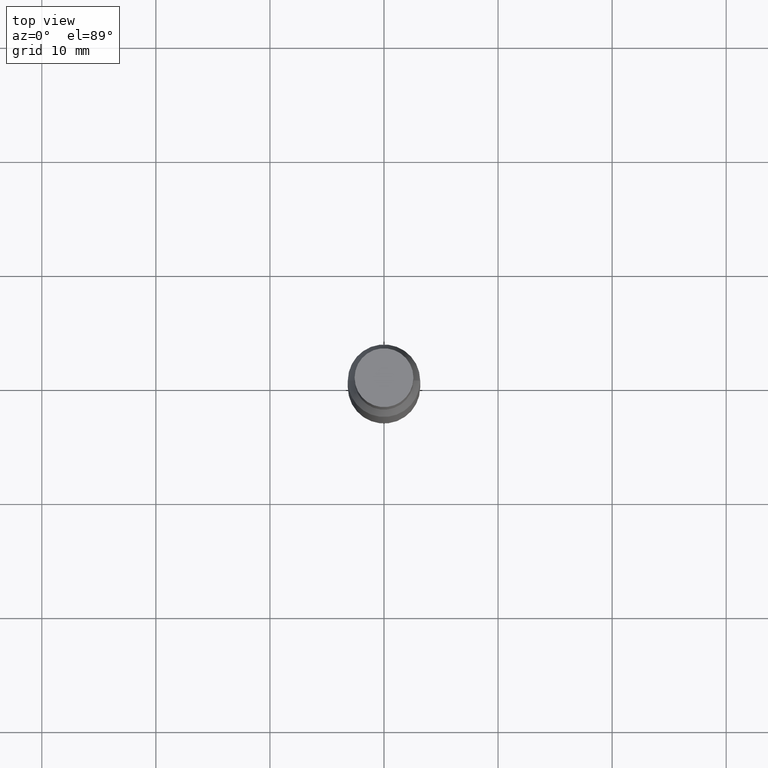
[diagram: clean part render]
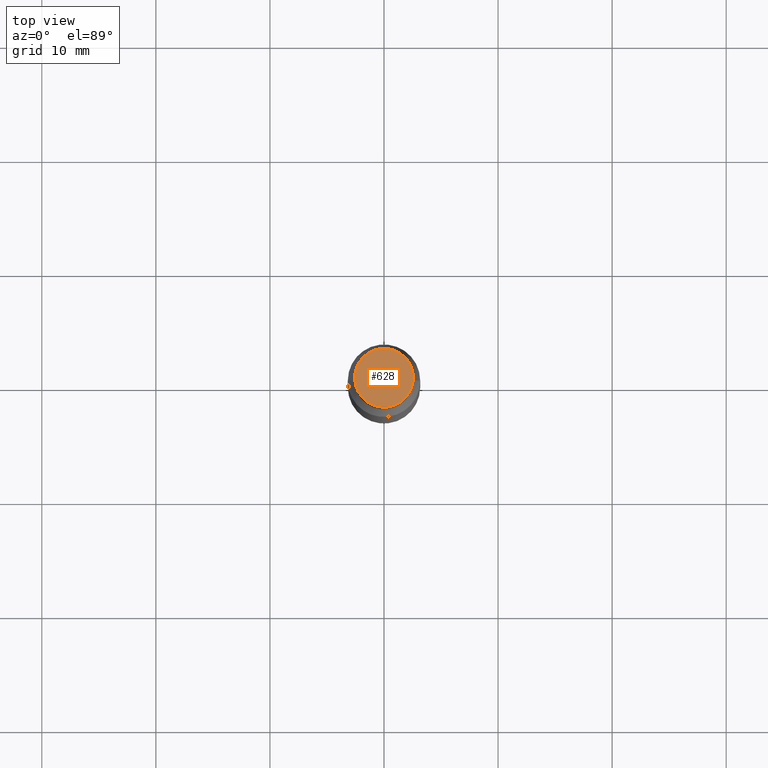
[diagram: same view with one face highlighted and labeled with its STEP entity id]
A machine part, top view. The second image highlights one B-rep face of the part: STEP entity #628.
In plain terms, the highlighted planar face has unit normal (-0, -0, -1).
Its self-contained STEP definition (entity closure, byte-faithful):
#36 = CARTESIAN_POINT ( 'NONE',  ( 6.155164165207819189E-29, 5.982381516878351542E-17, 5.463695987328526437E-16 ) ) ;
#51 = CARTESIAN_POINT ( 'NONE',  ( 6.113672015462842613E-29, 4.046951474745467748E-19, 5.463695987328526437E-16 ) ) ;
#78 = CIRCLE ( 'NONE', #437, 0.1015500000000000708 ) ;
#191 = DIRECTION ( 'NONE',  ( 2.445468806185136597E-29, 3.491805094961124077E-15, 1.000000000000000000 ) ) ;
#193 = EDGE_CURVE ( 'NONE', #581, #897, #614, .T. ) ;
#256 = DIRECTION ( 'NONE',  ( 1.000000000000000000, -6.982962677686266711E-15, 0.000000000000000000 ) ) ;
#329 = PLANE ( 'NONE',  #340 ) ;
#340 = AXIS2_PLACEMENT_3D ( 'NONE', #36, #389, #605 ) ;
#361 = CARTESIAN_POINT ( 'NONE',  ( 0.1015500000000000708, -7.087151647715663820E-16, 5.463695987328526437E-16 ) ) ;
#389 = DIRECTION ( 'NONE',  ( -2.438088387897959208E-29, -3.491805094961123683E-15, -1.000000000000000000 ) ) ;
#437 = AXIS2_PLACEMENT_3D ( 'NONE', #504, #191, #256 ) ;
#449 = ORIENTED_EDGE ( 'NONE', *, *, #193, .T. ) ;
#504 = CARTESIAN_POINT ( 'NONE',  ( 6.113672015462842613E-29, 4.046951474745467748E-19, 5.463695987328526437E-16 ) ) ;
#526 = EDGE_LOOP ( 'NONE', ( #899, #449 ) ) ;
#540 = CARTESIAN_POINT ( 'NONE',  ( -0.1015500000000000708, -1.758630069191064586E-16, 5.463695987328557991E-16 ) ) ;
#581 = VERTEX_POINT ( 'NONE', #540 ) ;
#605 = DIRECTION ( 'NONE',  ( 1.000000000000000000, -6.982962677686265922E-15, 2.260776888683160832E-33 ) ) ;
#614 = CIRCLE ( 'NONE', #941, 0.1015500000000000708 ) ;
#628 = ADVANCED_FACE ( 'NONE', ( #783 ), #329, .F. ) ;
#652 = DIRECTION ( 'NONE',  ( 1.000000000000000000, -6.982962677686266711E-15, 0.000000000000000000 ) ) ;
#783 = FACE_OUTER_BOUND ( 'NONE', #526, .T. ) ;
#791 = EDGE_CURVE ( 'NONE', #897, #581, #78, .T. ) ;
#897 = VERTEX_POINT ( 'NONE', #361 ) ;
#899 = ORIENTED_EDGE ( 'NONE', *, *, #791, .T. ) ;
#941 = AXIS2_PLACEMENT_3D ( 'NONE', #51, #956, #652 ) ;
#956 = DIRECTION ( 'NONE',  ( 2.445468806185136597E-29, 3.491805094961124077E-15, 1.000000000000000000 ) ) ;